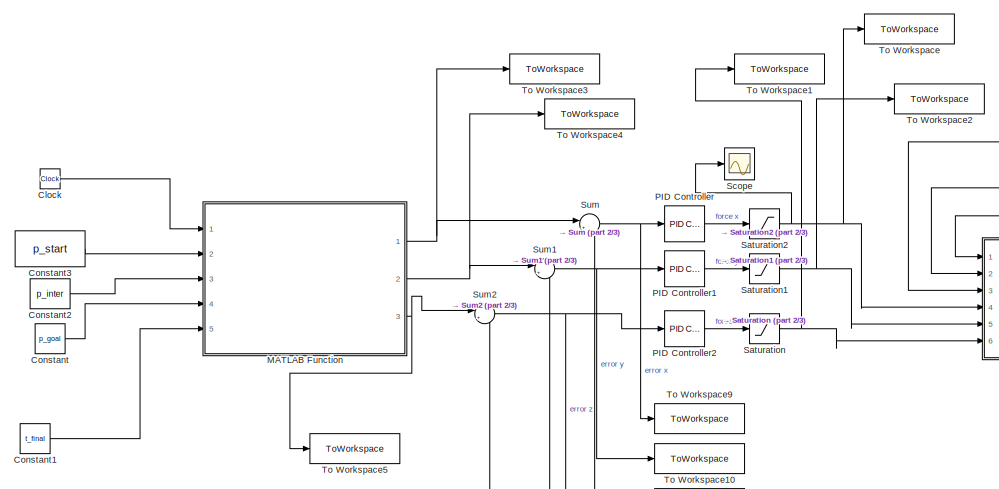
[diagram: root canvas - part 1/3, top left region]
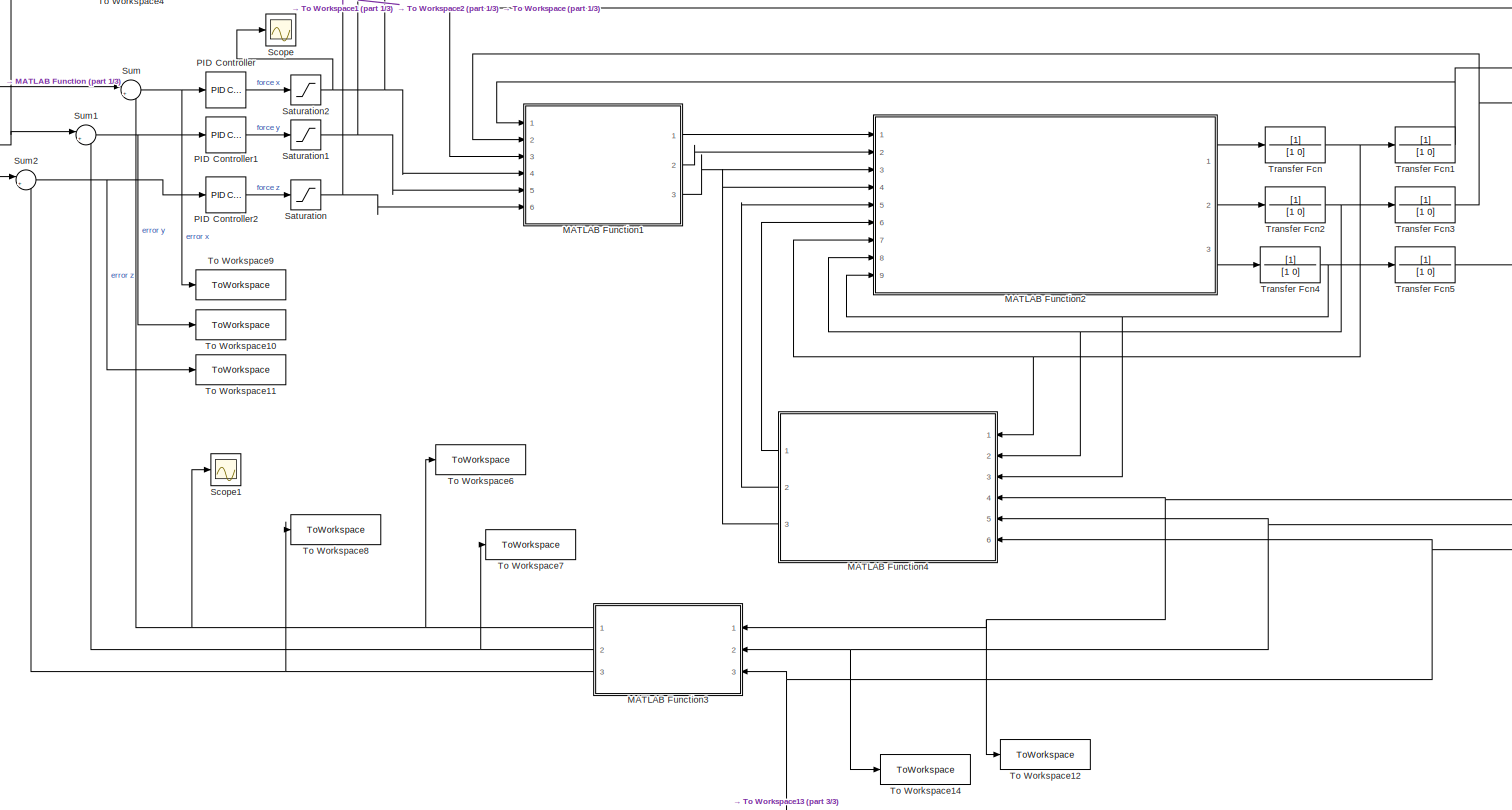
[diagram: root canvas - part 2/3, center side, full height]
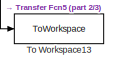
[diagram: root canvas - part 3/3, bottom center region]
MODEL slx_7fc3c1a55133
KIND model
CONFIG AbsTol = auto
CONFIG EnableMultiTasking = off
CONFIG FixedStep = auto
CONFIG MaxStep = auto
CONFIG MinStep = auto
CONFIG RelTol = 1e-3
CONFIG SampleTimeConstraint = Unconstrained
CONFIG SolverName = VariableStepAuto
CONFIG StartTime = 0.0
CONFIG StopTime = 15
BLOCK [Clock] Clock
BLOCK [Constant] Constant
  Value = p_goal
BLOCK [Constant] Constant1
  Value = t_final
BLOCK [Constant] Constant2
  Value = p_inter
BLOCK [Constant] Constant3
  Value = p_start
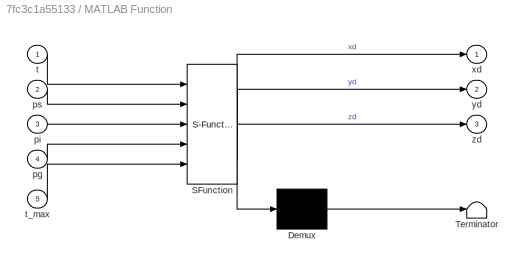
BLOCK [SubSystem] MATLAB Function
  ErrorFcn = Stateflow.Translate.translate
  PermitHierarchicalResolution = ExplicitOnly
  Ports = [5, 3]
  RequestExecContextInheritance = off
  SFBlockType = MATLAB Function
  TreatAsAtomicUnit = on
BLOCK [Demux] MATLAB Function/ Demux 
  Outputs = 1
  Ports = [1, 1]
BLOCK [S-Function] MATLAB Function/ SFunction 
  EnableBusSupport = on
  FunctionName = sf_sfun
  PortCounts = [5 4]
  Ports = [5, 4]
  SFcnIsStateOwnerBlock = off
  SFunctionDeploymentMode = off
  Tag = Stateflow S-Function 2
BLOCK [Terminator] MATLAB Function/ Terminator 
BLOCK [Inport] MATLAB Function/pg
  Port = 4
BLOCK [Inport] MATLAB Function/pi
  Port = 3
BLOCK [Inport] MATLAB Function/ps
  Port = 2
BLOCK [Inport] MATLAB Function/t
BLOCK [Inport] MATLAB Function/t_max
  Port = 5
BLOCK [Outport] MATLAB Function/xd
  VectorParamsAs1DForOutWhenUnconnected = off
BLOCK [Outport] MATLAB Function/yd
  Port = 2
BLOCK [Outport] MATLAB Function/zd
  Port = 3
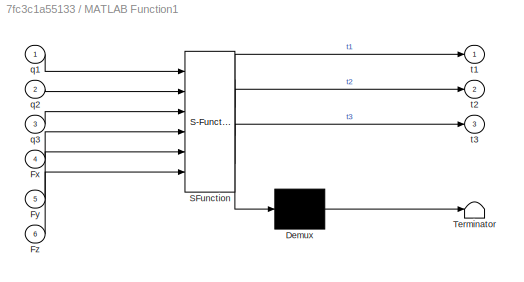
BLOCK [SubSystem] MATLAB Function1
  ErrorFcn = Stateflow.Translate.translate
  PermitHierarchicalResolution = ExplicitOnly
  Ports = [6, 3]
  RequestExecContextInheritance = off
  SFBlockType = MATLAB Function
  TreatAsAtomicUnit = on
BLOCK [Demux] MATLAB Function1/ Demux 
  Outputs = 1
  Ports = [1, 1]
BLOCK [S-Function] MATLAB Function1/ SFunction 
  EnableBusSupport = on
  FunctionName = sf_sfun
  PortCounts = [6 4]
  Ports = [6, 4]
  SFcnIsStateOwnerBlock = off
  SFunctionDeploymentMode = off
  Tag = Stateflow S-Function 1
BLOCK [Terminator] MATLAB Function1/ Terminator 
BLOCK [Inport] MATLAB Function1/Fx
  Port = 4
BLOCK [Inport] MATLAB Function1/Fy
  Port = 5
BLOCK [Inport] MATLAB Function1/Fz
  Port = 6
BLOCK [Inport] MATLAB Function1/q1
BLOCK [Inport] MATLAB Function1/q2
  Port = 2
BLOCK [Inport] MATLAB Function1/q3
  Port = 3
BLOCK [Outport] MATLAB Function1/t1
  VectorParamsAs1DForOutWhenUnconnected = off
BLOCK [Outport] MATLAB Function1/t2
  Port = 2
BLOCK [Outport] MATLAB Function1/t3
  Port = 3
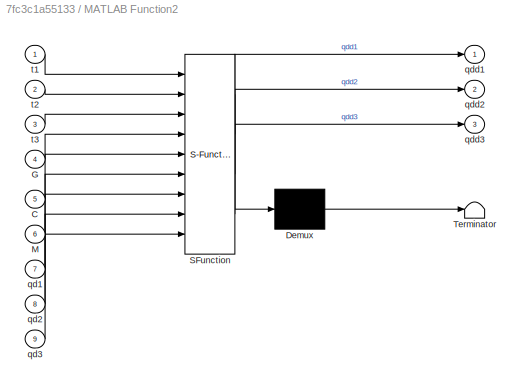
BLOCK [SubSystem] MATLAB Function2
  ErrorFcn = Stateflow.Translate.translate
  PermitHierarchicalResolution = ExplicitOnly
  Ports = [9, 3]
  RequestExecContextInheritance = off
  SFBlockType = MATLAB Function
  TreatAsAtomicUnit = on
BLOCK [Demux] MATLAB Function2/ Demux 
  Outputs = 1
  Ports = [1, 1]
BLOCK [S-Function] MATLAB Function2/ SFunction 
  EnableBusSupport = on
  FunctionName = sf_sfun
  PortCounts = [9 4]
  Ports = [9, 4]
  SFcnIsStateOwnerBlock = off
  SFunctionDeploymentMode = off
  Tag = Stateflow S-Function 3
BLOCK [Terminator] MATLAB Function2/ Terminator 
BLOCK [Inport] MATLAB Function2/C
  Port = 5
BLOCK [Inport] MATLAB Function2/G
  Port = 4
BLOCK [Inport] MATLAB Function2/M
  Port = 6
BLOCK [Inport] MATLAB Function2/qd1
  Port = 7
BLOCK [Inport] MATLAB Function2/qd2
  Port = 8
BLOCK [Inport] MATLAB Function2/qd3
  Port = 9
BLOCK [Outport] MATLAB Function2/qdd1
BLOCK [Outport] MATLAB Function2/qdd2
  Port = 2
BLOCK [Outport] MATLAB Function2/qdd3
  Port = 3
BLOCK [Inport] MATLAB Function2/t1
BLOCK [Inport] MATLAB Function2/t2
  Port = 2
BLOCK [Inport] MATLAB Function2/t3
  Port = 3
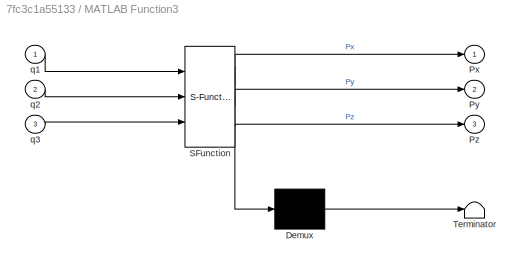
BLOCK [SubSystem] MATLAB Function3
  ErrorFcn = Stateflow.Translate.translate
  NameLocation = top
  PermitHierarchicalResolution = ExplicitOnly
  Ports = [3, 3]
  RequestExecContextInheritance = off
  SFBlockType = MATLAB Function
  TreatAsAtomicUnit = on
BLOCK [Demux] MATLAB Function3/ Demux 
  Outputs = 1
  Ports = [1, 1]
BLOCK [S-Function] MATLAB Function3/ SFunction 
  EnableBusSupport = on
  FunctionName = sf_sfun
  PortCounts = [3 4]
  Ports = [3, 4]
  SFcnIsStateOwnerBlock = off
  SFunctionDeploymentMode = off
  Tag = Stateflow S-Function 4
BLOCK [Terminator] MATLAB Function3/ Terminator 
BLOCK [Outport] MATLAB Function3/Px
  VectorParamsAs1DForOutWhenUnconnected = off
BLOCK [Outport] MATLAB Function3/Py
  Port = 2
BLOCK [Outport] MATLAB Function3/Pz
  Port = 3
BLOCK [Inport] MATLAB Function3/q1
BLOCK [Inport] MATLAB Function3/q2
  Port = 2
BLOCK [Inport] MATLAB Function3/q3
  Port = 3
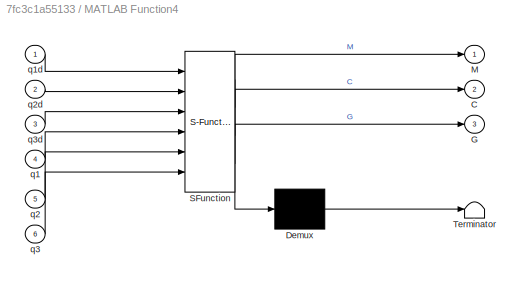
BLOCK [SubSystem] MATLAB Function4
  ErrorFcn = Stateflow.Translate.translate
  NameLocation = top
  PermitHierarchicalResolution = ExplicitOnly
  Ports = [6, 3]
  RequestExecContextInheritance = off
  SFBlockType = MATLAB Function
  TreatAsAtomicUnit = on
BLOCK [Demux] MATLAB Function4/ Demux 
  Outputs = 1
  Ports = [1, 1]
BLOCK [S-Function] MATLAB Function4/ SFunction 
  EnableBusSupport = on
  FunctionName = sf_sfun
  PortCounts = [6 4]
  Ports = [6, 4]
  SFcnIsStateOwnerBlock = off
  SFunctionDeploymentMode = off
  Tag = Stateflow S-Function 5
BLOCK [Terminator] MATLAB Function4/ Terminator 
BLOCK [Outport] MATLAB Function4/C
  Port = 2
BLOCK [Outport] MATLAB Function4/G
  Port = 3
BLOCK [Outport] MATLAB Function4/M
BLOCK [Inport] MATLAB Function4/q1
  Port = 4
BLOCK [Inport] MATLAB Function4/q1d
BLOCK [Inport] MATLAB Function4/q2
  Port = 5
BLOCK [Inport] MATLAB Function4/q2d
  Port = 2
BLOCK [Inport] MATLAB Function4/q3
  Port = 6
BLOCK [Inport] MATLAB Function4/q3d
  Port = 3
BLOCK [Reference] PID Controller  REF=slpidlib/PID Controller
  Ports = [1, 1]
  SourceBlock = slpidlib/PID Controller
  SourceProductBaseCode = SL
  SourceType = PID 1dof
BLOCK [Reference] PID Controller1  REF=slpidlib/PID Controller
  Ports = [1, 1]
  SourceBlock = slpidlib/PID Controller
  SourceProductBaseCode = SL
  SourceType = PID 1dof
BLOCK [Reference] PID Controller2  REF=slpidlib/PID Controller
  Ports = [1, 1]
  SourceBlock = slpidlib/PID Controller
  SourceProductBaseCode = SL
  SourceType = PID 1dof
BLOCK [Saturate] Saturation
  LowerLimit = -1
  UpperLimit = 1
BLOCK [Saturate] Saturation1
  LowerLimit = -1
  UpperLimit = 1
BLOCK [Saturate] Saturation2
  LowerLimit = -1
  UpperLimit = 1
BLOCK [Scope] Scope
  Floating = off
  NumInputPorts = 1
  Ports = [1]
  ScopeSpecificationString = Simulink.scopes.TimeScopeBlockCfg('CurrentConfiguration', extmgr.ConfigurationSet(extmgr.Configuration('Core','General UI',true),extmgr.Configuration('Core','Source UI',true),extmgr.Configuration('Sources','WiredSimulink',true),extmgr.Configuration('Visuals','Time Domain',true,'SerializedDisplays',{struct('MinYLimReal','-0.16834','MaxYLimReal','0.12817','YLabelReal','','MinYLimMag','0.00000','MaxY...<+1364ch>
BLOCK [Scope] Scope1
  Floating = off
  NumInputPorts = 1
  Ports = [1]
  ScopeSpecificationString = Simulink.scopes.TimeScopeBlockCfg('CurrentConfiguration', extmgr.ConfigurationSet(extmgr.Configuration('Core','General UI',true),extmgr.Configuration('Core','Source UI',true),extmgr.Configuration('Sources','WiredSimulink',true,'DataLoggingVariableName','ScopeData1'),extmgr.Configuration('Visuals','Time Domain',true,'SerializedDisplays',{struct('MinYLimReal','-0.01877','MaxYLimReal','0.16894','YLab...<+1411ch>
BLOCK [Sum] Sum
  Inputs = |+-
  Ports = [2, 1]
BLOCK [Sum] Sum1
  Inputs = |+-
  Ports = [2, 1]
BLOCK [Sum] Sum2
  Inputs = |+-
  Ports = [2, 1]
BLOCK [ToWorkspace] To Workspace
  FixptAsFi = on
  MaxDataPoints = inf
  Ports = [1]
  SampleTime = -1
  SaveFormat = Timeseries
  VariableName = forceX
BLOCK [ToWorkspace] To Workspace1
  FixptAsFi = on
  MaxDataPoints = inf
  Ports = [1]
  SampleTime = -1
  SaveFormat = Timeseries
  VariableName = forceZ
BLOCK [ToWorkspace] To Workspace10
  FixptAsFi = on
  MaxDataPoints = inf
  Ports = [1]
  SampleTime = -1
  SaveFormat = Timeseries
  VariableName = yError
BLOCK [ToWorkspace] To Workspace11
  FixptAsFi = on
  MaxDataPoints = inf
  Ports = [1]
  SampleTime = -1
  SaveFormat = Timeseries
  VariableName = zError
BLOCK [ToWorkspace] To Workspace12
  FixptAsFi = on
  MaxDataPoints = inf
  Ports = [1]
  SampleTime = -1
  SaveFormat = Timeseries
  VariableName = theta1
BLOCK [ToWorkspace] To Workspace13
  FixptAsFi = on
  MaxDataPoints = inf
  Ports = [1]
  SampleTime = -1
  SaveFormat = Timeseries
  VariableName = theta3
BLOCK [ToWorkspace] To Workspace14
  FixptAsFi = on
  MaxDataPoints = inf
  Ports = [1]
  SampleTime = -1
  SaveFormat = Timeseries
  VariableName = theta2
BLOCK [ToWorkspace] To Workspace2
  FixptAsFi = on
  MaxDataPoints = inf
  Ports = [1]
  SampleTime = -1
  SaveFormat = Timeseries
  VariableName = forceY
BLOCK [ToWorkspace] To Workspace3
  FixptAsFi = on
  MaxDataPoints = inf
  Ports = [1]
  SampleTime = -1
  SaveFormat = Timeseries
  VariableName = xDesired
BLOCK [ToWorkspace] To Workspace4
  FixptAsFi = on
  MaxDataPoints = inf
  Ports = [1]
  SampleTime = -1
  SaveFormat = Timeseries
  VariableName = yDesired
BLOCK [ToWorkspace] To Workspace5
  FixptAsFi = on
  MaxDataPoints = inf
  Ports = [1]
  SampleTime = -1
  SaveFormat = Timeseries
  VariableName = zDesired
BLOCK [ToWorkspace] To Workspace6
  FixptAsFi = on
  MaxDataPoints = inf
  Ports = [1]
  SampleTime = -1
  SaveFormat = Timeseries
  VariableName = xSim
BLOCK [ToWorkspace] To Workspace7
  FixptAsFi = on
  MaxDataPoints = inf
  Ports = [1]
  SampleTime = -1
  SaveFormat = Timeseries
  VariableName = ySim
BLOCK [ToWorkspace] To Workspace8
  FixptAsFi = on
  MaxDataPoints = inf
  Ports = [1]
  SampleTime = -1
  SaveFormat = Timeseries
  VariableName = zSim
BLOCK [ToWorkspace] To Workspace9
  FixptAsFi = on
  MaxDataPoints = inf
  Ports = [1]
  SampleTime = -1
  SaveFormat = Timeseries
  VariableName = xError
BLOCK [TransferFcn] Transfer Fcn
  Denominator = [1 0]
BLOCK [TransferFcn] Transfer Fcn1
  Denominator = [1 0]
BLOCK [TransferFcn] Transfer Fcn2
  Denominator = [1 0]
BLOCK [TransferFcn] Transfer Fcn3
  Denominator = [1 0]
BLOCK [TransferFcn] Transfer Fcn4
  Denominator = [1 0]
BLOCK [TransferFcn] Transfer Fcn5
  Denominator = [1 0]
LINE Clock:1 -> MATLAB Function:1
LINE Constant1:1 -> MATLAB Function:5
LINE Constant2:1 -> MATLAB Function:3
LINE Constant3:1 -> MATLAB Function:2
LINE Constant:1 -> MATLAB Function:4
LINE MATLAB Function1:1 -> MATLAB Function2:1
LINE MATLAB Function1:2 -> MATLAB Function2:2
LINE MATLAB Function1:3 -> MATLAB Function2:3
LINE MATLAB Function2:1 -> Transfer Fcn:1
LINE MATLAB Function2:2 -> Transfer Fcn2:1
LINE MATLAB Function2:3 -> Transfer Fcn4:1
NET MATLAB Function3:1 -> Scope1:1, Sum:2, To Workspace6:1
NET MATLAB Function3:2 -> Sum1:2, To Workspace7:1
NET MATLAB Function3:3 -> Sum2:2, To Workspace8:1
LINE MATLAB Function4:1 -> MATLAB Function2:6
LINE MATLAB Function4:2 -> MATLAB Function2:5
LINE MATLAB Function4:3 -> MATLAB Function2:4
NET MATLAB Function:1 -> Sum:1, To Workspace3:1
NET MATLAB Function:2 -> Sum1:1, To Workspace4:1
NET MATLAB Function:3 -> Sum2:1, To Workspace5:1
LINE PID Controller1:1 -> Saturation1:1
LINE PID Controller2:1 -> Saturation:1
LINE PID Controller:1 -> Saturation2:1
NET Saturation1:1 -> MATLAB Function1:5, To Workspace2:1
NET Saturation2:1 -> MATLAB Function1:4, Scope:1, To Workspace:1
NET Saturation:1 -> MATLAB Function1:6, To Workspace1:1
NET Sum1:1 -> PID Controller1:1, To Workspace10:1
NET Sum2:1 -> PID Controller2:1, To Workspace11:1
NET Sum:1 -> PID Controller:1, To Workspace9:1
NET Transfer Fcn1:1 -> MATLAB Function1:1, MATLAB Function3:1, MATLAB Function4:4, To Workspace12:1
NET Transfer Fcn2:1 -> MATLAB Function2:8, MATLAB Function4:2, Transfer Fcn3:1
NET Transfer Fcn3:1 -> MATLAB Function1:2, MATLAB Function3:2, MATLAB Function4:5, To Workspace14:1
NET Transfer Fcn4:1 -> MATLAB Function2:9, MATLAB Function4:3, Transfer Fcn5:1
NET Transfer Fcn5:1 -> MATLAB Function1:3, MATLAB Function3:3, MATLAB Function4:6, To Workspace13:1
NET Transfer Fcn:1 -> MATLAB Function2:7, MATLAB Function4:1, Transfer Fcn1:1
note: NET lines group one-source signal fan-out (src -> all destinations, sorted); 1:1 wires keep LINE
CHART MATLAB Function1 states=1 transitions=1
  STATE_LABEL 'eML_blk_kernel()'
  STATE_LABEL 'SCRIPT:\nfunction [t1,t2,t3] = jacobian_pro(q1,q2,q3,Fx,Fy,Fz)\n%#codegen\n\nL1 = 0.215;%new\nL2 = 0.170;\n\n% Partial derivatives of Px, Py, and Pz with respect to q1, q2, and q3\ndPx_dq1 = cos(q1)*(L1*cos(q2) + L2*sin(q3));\ndPx_dq2 = -sin(q1)*sin(q2)*L1;\ndPx_dq3 = sin(q1)*(L2*cos(q3));\n\ndPy_dq1 = 0;\ndPy_dq2 = L1*cos(q2);\ndPy_dq3 = L2*sin(q3);\n\ndPz_dq1 = -sin(q1)*(L1*cos(q2) + L2*sin(q3));\ndPz_dq2 = -L1*...<+249ch>'
CHART MATLAB Function states=1 transitions=1
  STATE_LABEL 'eML_blk_kernel()'
  STATE_LABEL 'SCRIPT:\nfunction [xd, yd, zd] = path_pro(t,ps, pi, pg,t_max)\n    % Calculate the number of points for each segment\n    num_points_segment1 = 2000;\n    num_points_segment2 = 2000;\n\n    % Initialize arrays to store the coordinates\n    xda = zeros(1, num_points_segment1 + num_points_segment2);\n    yda = zeros(1, num_points_segment1 + num_points_segment2);\n    zda = zeros(1, num_points_segment1 + num_...<+1125ch>'
CHART MATLAB Function2 states=1 transitions=1
  STATE_LABEL 'eML_blk_kernel()'
  STATE_LABEL 'SCRIPT:\nfunction [qdd1,qdd2,qdd3] = robot_pro(t1,t2,t3,G,C,M,qd1,qd2,qd3)\ntorque = transpose([t1 t2 t3]);\nqd = transpose([qd1*qd1 qd2*qd2 qd3*qd3]);\n\n%torque = n x 1\n% M => n x n  mass matrix\n% V should be n x 1 but the given C is n x n\n\n\nqdd = inv(M) * (torque - C * qd - G);\n\nqdd1 = qdd(1);\nqdd2 = qdd(2);\nqdd3 = qdd(3);\n\n'
CHART MATLAB Function3 states=1 transitions=1
  STATE_LABEL 'eML_blk_kernel()'
  STATE_LABEL 'SCRIPT:\nfunction [Px,Py,Pz] = forward_kinematics(q1,q2,q3)\n%#codegen\nL1 = 0.215;\nL2 = 0.170;\nPx = sin(q1)*(L1*cos(q2) + L2 * sin(q3));\nPy = L2 - L2 * cos(q3) + L1 * sin(q2);\nPz = -L1 + cos(q1)*(L1 * cos(q2) + L2 * sin(q3));\n'
CHART MATLAB Function4 states=1 transitions=1
  STATE_LABEL 'eML_blk_kernel()'
  STATE_LABEL 'SCRIPT:\nfunction [M,C,G] = dynamical_properties(q1d,q2d,q3d,q1,q2,q3)\n\n%q1 = q(1); q2 = q(2); q3 = q(3); \n%q1d = qd(1); q2d = qd(2); q3d = qd(3); \n\n%% phantom premium 1.5 parameters\nma = 0.0202;%new\nmc = 0.0249;%new\nmbe = 0.2359;%new\nmdf = 0.1906;\nl1 = 0.215;%new\nl2 = 0.170;\nl3 = 0.0325;\nl5 = -36.8e-3;\nl6 = 52.7e-3;\ng = 9.81;\n\n%% moment of inertia params\nIaxx = 0.4864e-4;\nIayy = 0.001843e-4;\nIazz ...<+1550ch>'
CHART  states=0 transitions=0
CHART  states=0 transitions=0
CHART  states=0 transitions=0
CHART  states=0 transitions=0
CHART  states=0 transitions=0
